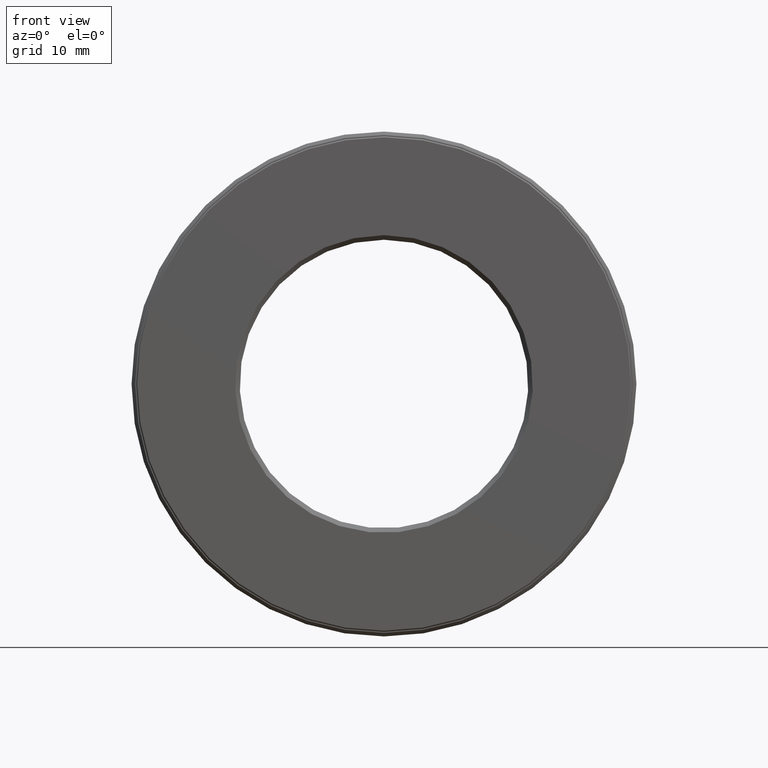
[diagram: clean part render]
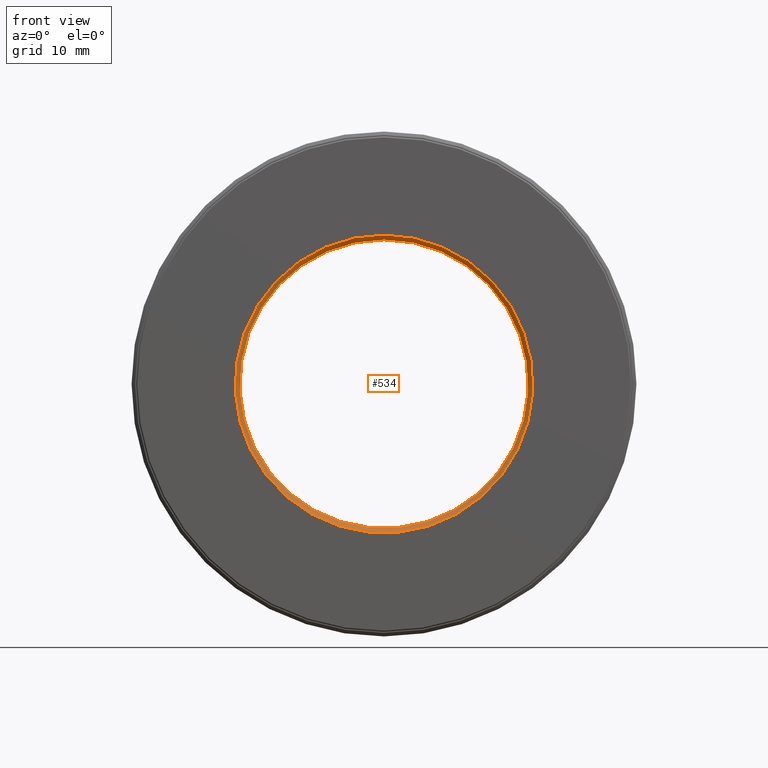
[diagram: same view with one face highlighted and labeled with its STEP entity id]
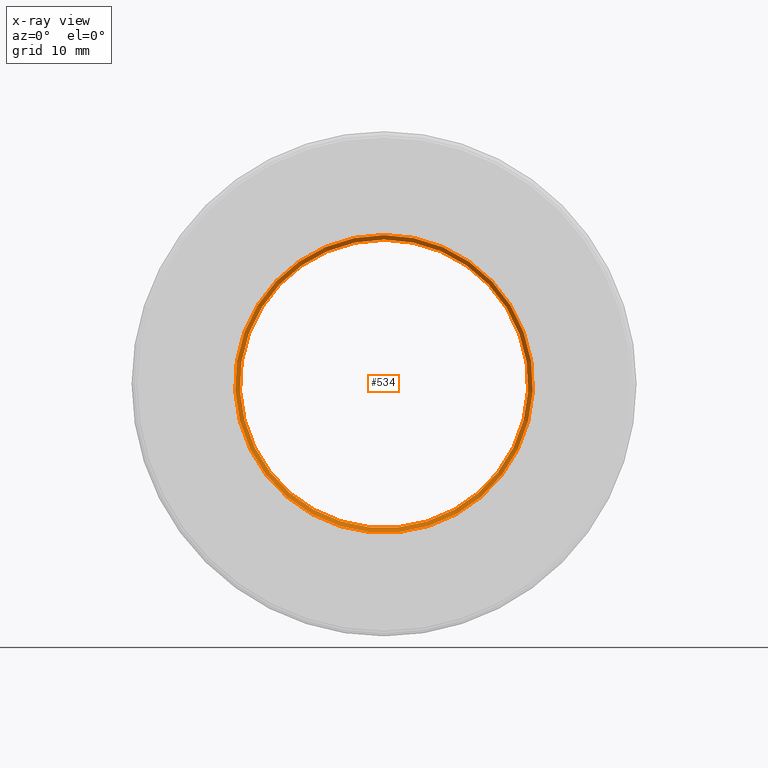
[diagram: x-ray of the same camera — body ghosted, the highlighted face saturated]
A machine part, front view. The second image highlights one B-rep face of the part: STEP entity #534.
The next image is the same camera in x-ray: the body ghosted, the highlighted face saturated — about 0% of this face is hidden behind the body in this view.
In plain terms, the highlighted conical surface has half-angle 45 deg.
Its self-contained STEP definition (entity closure, byte-faithful):
#36 = DIRECTION ( 'NONE',  ( 0.0000000000000000000, 0.0000000000000000000, 1.000000000000000000 ) ) ;
#68 = AXIS2_PLACEMENT_3D ( 'NONE', #317, #318, #76 ) ;
#69 = CIRCLE ( 'NONE', #503, 0.6249999999999998900 ) ;
#76 = DIRECTION ( 'NONE',  ( 0.0000000000000000000, 0.0000000000000000000, -1.000000000000000000 ) ) ;
#107 = AXIS2_PLACEMENT_3D ( 'NONE', #510, #550, #505 ) ;
#142 = FACE_BOUND ( 'NONE', #190, .T. ) ;
#162 = VERTEX_POINT ( 'NONE', #475 ) ;
#185 = EDGE_CURVE ( 'NONE', #162, #162, #541, .T. ) ;
#190 = EDGE_LOOP ( 'NONE', ( #195 ) ) ;
#195 = ORIENTED_EDGE ( 'NONE', *, *, #281, .T. ) ;
#266 = CARTESIAN_POINT ( 'NONE',  ( 0.0000000000000000000, 0.02000000000000046900, 0.0000000000000000000 ) ) ;
#270 = DIRECTION ( 'NONE',  ( -0.0000000000000000000, 1.000000000000000000, -0.0000000000000000000 ) ) ;
#281 = EDGE_CURVE ( 'NONE', #355, #355, #69, .T. ) ;
#317 = CARTESIAN_POINT ( 'NONE',  ( 0.0000000000000000000, 0.02000000000000046900, 0.0000000000000000000 ) ) ;
#318 = DIRECTION ( 'NONE',  ( 0.0000000000000000000, -1.000000000000000000, 0.0000000000000000000 ) ) ;
#355 = VERTEX_POINT ( 'NONE', #472 ) ;
#472 = CARTESIAN_POINT ( 'NONE',  ( 0.0000000000000000000, 0.02000000000000046900, 0.6249999999999998900 ) ) ;
#475 = CARTESIAN_POINT ( 'NONE',  ( 0.0000000000000000000, 0.0000000000000000000, 0.6450000000000001300 ) ) ;
#476 = FACE_OUTER_BOUND ( 'NONE', #577, .T. ) ;
#503 = AXIS2_PLACEMENT_3D ( 'NONE', #266, #270, #36 ) ;
#505 = DIRECTION ( 'NONE',  ( 0.0000000000000000000, 0.0000000000000000000, 1.000000000000000000 ) ) ;
#510 = CARTESIAN_POINT ( 'NONE',  ( 0.0000000000000000000, 0.0000000000000000000, 0.0000000000000000000 ) ) ;
#521 = CONICAL_SURFACE ( 'NONE', #68, 0.6249999999999998900, 0.7853981633974415100 ) ;
#534 = ADVANCED_FACE ( 'NONE', ( #476, #142 ), #521, .F. ) ;
#541 = CIRCLE ( 'NONE', #107, 0.6450000000000001300 ) ;
#550 = DIRECTION ( 'NONE',  ( -0.0000000000000000000, 1.000000000000000000, -0.0000000000000000000 ) ) ;
#577 = EDGE_LOOP ( 'NONE', ( #589 ) ) ;
#589 = ORIENTED_EDGE ( 'NONE', *, *, #185, .F. ) ;